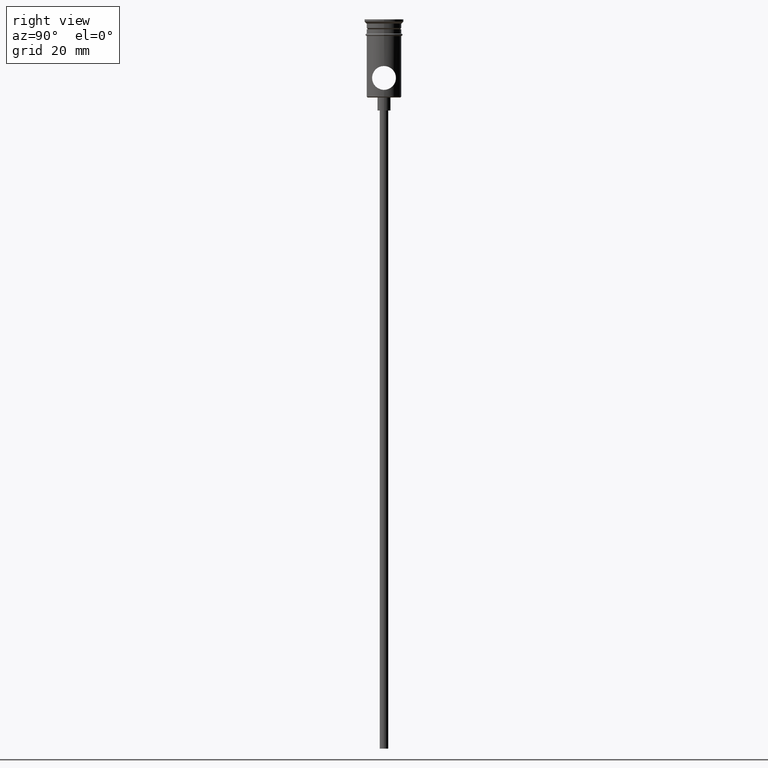
[diagram: clean part render]
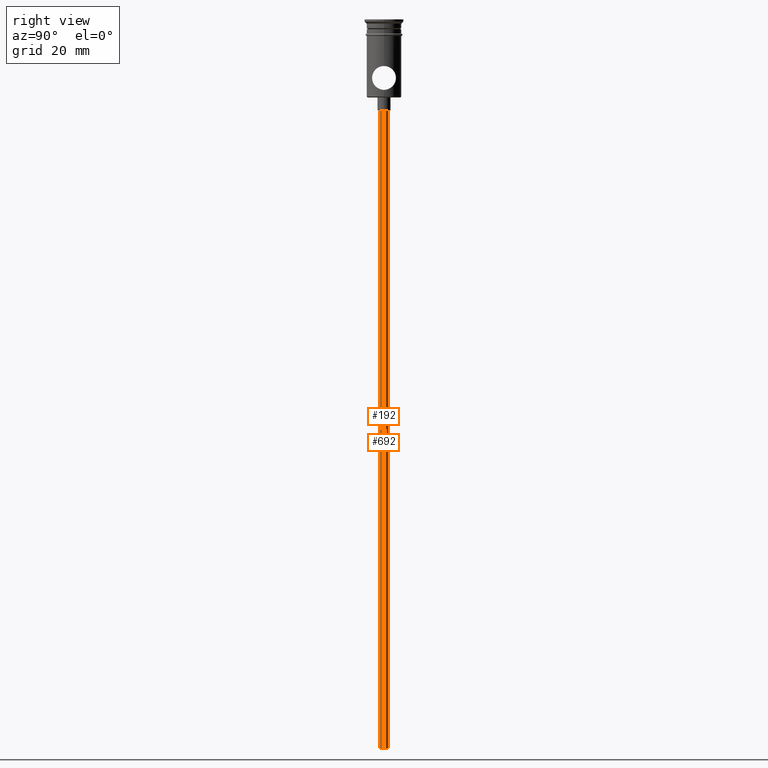
[diagram: same view with one multi-face feature highlighted, each face labeled with its STEP entity id]
A machine part, right view. The highlighted faces form ONE feature: a constant-radius fillet chain: 2 tangent blend faces with common blend radius 1 mm. The faces share edges in the B-rep.
Their STEP definitions:
[1] entity #192 (Cylinder):
#47 = DIRECTION ( 'NONE',  ( -1.000000000000000000, 0.000000000000000000, 0.000000000000000000 ) ) ;
#62 = FACE_OUTER_BOUND ( 'NONE', #77, .T. ) ;
#77 = EDGE_LOOP ( 'NONE', ( #196, #838, #388, #590 ) ) ;
#142 = VERTEX_POINT ( 'NONE', #391 ) ;
#175 = LINE ( 'NONE', #1372, #1396 ) ;
#192 = ADVANCED_FACE ( 'NONE', ( #62 ), #707, .T. ) ;
#196 = ORIENTED_EDGE ( 'NONE', *, *, #683, .F. ) ;
#211 = CARTESIAN_POINT ( 'NONE',  ( 0.9999999999999997780, 0.000000000000000000, -20.99999999999999645 ) ) ;
#348 = AXIS2_PLACEMENT_3D ( 'NONE', #1142, #804, #1251 ) ;
#388 = ORIENTED_EDGE ( 'NONE', *, *, #615, .T. ) ;
#391 = CARTESIAN_POINT ( 'NONE',  ( 0.9999999999999997780, 0.000000000000000000, -167.9999999999999716 ) ) ;
#443 = VECTOR ( 'NONE', #519, 1000.000000000000000 ) ;
#450 = EDGE_CURVE ( 'NONE', #142, #1011, #967, .T. ) ;
#512 = CIRCLE ( 'NONE', #1313, 0.9999999999999997780 ) ;
#519 = DIRECTION ( 'NONE',  ( -0.000000000000000000, -0.000000000000000000, 1.000000000000000000 ) ) ;
#590 = ORIENTED_EDGE ( 'NONE', *, *, #1329, .T. ) ;
#615 = EDGE_CURVE ( 'NONE', #142, #1077, #175, .T. ) ;
#639 = CARTESIAN_POINT ( 'NONE',  ( -0.9999999999999997780, 1.224646799147352961E-16, -167.9999999999999716 ) ) ;
#683 = EDGE_CURVE ( 'NONE', #1011, #1256, #1283, .T. ) ;
#707 = CYLINDRICAL_SURFACE ( 'NONE', #1285, 0.9999999999999997780 ) ;
#804 = DIRECTION ( 'NONE',  ( 0.000000000000000000, 0.000000000000000000, -1.000000000000000000 ) ) ;
#813 = DIRECTION ( 'NONE',  ( 1.000000000000000000, 0.000000000000000000, 0.000000000000000000 ) ) ;
#835 = DIRECTION ( 'NONE',  ( -0.000000000000000000, -0.000000000000000000, 1.000000000000000000 ) ) ;
#838 = ORIENTED_EDGE ( 'NONE', *, *, #450, .F. ) ;
#926 = CARTESIAN_POINT ( 'NONE',  ( 0.000000000000000000, 0.000000000000000000, -20.99999999999999645 ) ) ;
#937 = CARTESIAN_POINT ( 'NONE',  ( 0.000000000000000000, 0.000000000000000000, -167.9999999999999716 ) ) ;
#967 = CIRCLE ( 'NONE', #348, 0.9999999999999997780 ) ;
#1011 = VERTEX_POINT ( 'NONE', #1104 ) ;
#1036 = DIRECTION ( 'NONE',  ( 0.000000000000000000, 0.000000000000000000, -1.000000000000000000 ) ) ;
#1077 = VERTEX_POINT ( 'NONE', #211 ) ;
#1104 = CARTESIAN_POINT ( 'NONE',  ( -0.9999999999999997780, 1.224646799147352961E-16, -167.9999999999999716 ) ) ;
#1138 = CARTESIAN_POINT ( 'NONE',  ( -0.9999999999999997780, 1.224646799147352961E-16, -20.99999999999999645 ) ) ;
#1142 = CARTESIAN_POINT ( 'NONE',  ( 0.000000000000000000, 0.000000000000000000, -167.9999999999999716 ) ) ;
#1251 = DIRECTION ( 'NONE',  ( -1.000000000000000000, 0.000000000000000000, 0.000000000000000000 ) ) ;
#1256 = VERTEX_POINT ( 'NONE', #1138 ) ;
#1283 = LINE ( 'NONE', #639, #443 ) ;
#1285 = AXIS2_PLACEMENT_3D ( 'NONE', #937, #1363, #813 ) ;
#1313 = AXIS2_PLACEMENT_3D ( 'NONE', #926, #1036, #47 ) ;
#1329 = EDGE_CURVE ( 'NONE', #1077, #1256, #512, .T. ) ;
#1363 = DIRECTION ( 'NONE',  ( -0.000000000000000000, -0.000000000000000000, 1.000000000000000000 ) ) ;
#1372 = CARTESIAN_POINT ( 'NONE',  ( 0.9999999999999997780, 0.000000000000000000, -167.9999999999999716 ) ) ;
#1396 = VECTOR ( 'NONE', #835, 1000.000000000000000 ) ;
[2] entity #692 (Cylinder):
#35 = DIRECTION ( 'NONE',  ( -1.000000000000000000, 0.000000000000000000, 0.000000000000000000 ) ) ;
#142 = VERTEX_POINT ( 'NONE', #391 ) ;
#175 = LINE ( 'NONE', #1372, #1396 ) ;
#186 = AXIS2_PLACEMENT_3D ( 'NONE', #298, #1080, #193 ) ;
#191 = EDGE_LOOP ( 'NONE', ( #698, #919, #1199, #864 ) ) ;
#193 = DIRECTION ( 'NONE',  ( 1.000000000000000000, 0.000000000000000000, 0.000000000000000000 ) ) ;
#211 = CARTESIAN_POINT ( 'NONE',  ( 0.9999999999999997780, 0.000000000000000000, -20.99999999999999645 ) ) ;
#298 = CARTESIAN_POINT ( 'NONE',  ( 0.000000000000000000, 0.000000000000000000, -167.9999999999999716 ) ) ;
#326 = AXIS2_PLACEMENT_3D ( 'NONE', #814, #595, #1150 ) ;
#352 = CARTESIAN_POINT ( 'NONE',  ( 0.000000000000000000, 0.000000000000000000, -20.99999999999999645 ) ) ;
#374 = AXIS2_PLACEMENT_3D ( 'NONE', #352, #580, #35 ) ;
#391 = CARTESIAN_POINT ( 'NONE',  ( 0.9999999999999997780, 0.000000000000000000, -167.9999999999999716 ) ) ;
#443 = VECTOR ( 'NONE', #519, 1000.000000000000000 ) ;
#519 = DIRECTION ( 'NONE',  ( -0.000000000000000000, -0.000000000000000000, 1.000000000000000000 ) ) ;
#580 = DIRECTION ( 'NONE',  ( 0.000000000000000000, 0.000000000000000000, -1.000000000000000000 ) ) ;
#581 = CIRCLE ( 'NONE', #374, 0.9999999999999997780 ) ;
#595 = DIRECTION ( 'NONE',  ( 0.000000000000000000, 0.000000000000000000, -1.000000000000000000 ) ) ;
#615 = EDGE_CURVE ( 'NONE', #142, #1077, #175, .T. ) ;
#639 = CARTESIAN_POINT ( 'NONE',  ( -0.9999999999999997780, 1.224646799147352961E-16, -167.9999999999999716 ) ) ;
#683 = EDGE_CURVE ( 'NONE', #1011, #1256, #1283, .T. ) ;
#692 = ADVANCED_FACE ( 'NONE', ( #1384 ), #1402, .T. ) ;
#698 = ORIENTED_EDGE ( 'NONE', *, *, #1315, .F. ) ;
#814 = CARTESIAN_POINT ( 'NONE',  ( 0.000000000000000000, 0.000000000000000000, -167.9999999999999716 ) ) ;
#835 = DIRECTION ( 'NONE',  ( -0.000000000000000000, -0.000000000000000000, 1.000000000000000000 ) ) ;
#864 = ORIENTED_EDGE ( 'NONE', *, *, #615, .F. ) ;
#919 = ORIENTED_EDGE ( 'NONE', *, *, #683, .T. ) ;
#949 = CIRCLE ( 'NONE', #326, 0.9999999999999997780 ) ;
#1011 = VERTEX_POINT ( 'NONE', #1104 ) ;
#1077 = VERTEX_POINT ( 'NONE', #211 ) ;
#1080 = DIRECTION ( 'NONE',  ( -0.000000000000000000, -0.000000000000000000, 1.000000000000000000 ) ) ;
#1104 = CARTESIAN_POINT ( 'NONE',  ( -0.9999999999999997780, 1.224646799147352961E-16, -167.9999999999999716 ) ) ;
#1138 = CARTESIAN_POINT ( 'NONE',  ( -0.9999999999999997780, 1.224646799147352961E-16, -20.99999999999999645 ) ) ;
#1150 = DIRECTION ( 'NONE',  ( -1.000000000000000000, 0.000000000000000000, 0.000000000000000000 ) ) ;
#1199 = ORIENTED_EDGE ( 'NONE', *, *, #1203, .T. ) ;
#1203 = EDGE_CURVE ( 'NONE', #1256, #1077, #581, .T. ) ;
#1256 = VERTEX_POINT ( 'NONE', #1138 ) ;
#1283 = LINE ( 'NONE', #639, #443 ) ;
#1315 = EDGE_CURVE ( 'NONE', #1011, #142, #949, .T. ) ;
#1372 = CARTESIAN_POINT ( 'NONE',  ( 0.9999999999999997780, 0.000000000000000000, -167.9999999999999716 ) ) ;
#1384 = FACE_OUTER_BOUND ( 'NONE', #191, .T. ) ;
#1396 = VECTOR ( 'NONE', #835, 1000.000000000000000 ) ;
#1402 = CYLINDRICAL_SURFACE ( 'NONE', #186, 0.9999999999999997780 ) ;